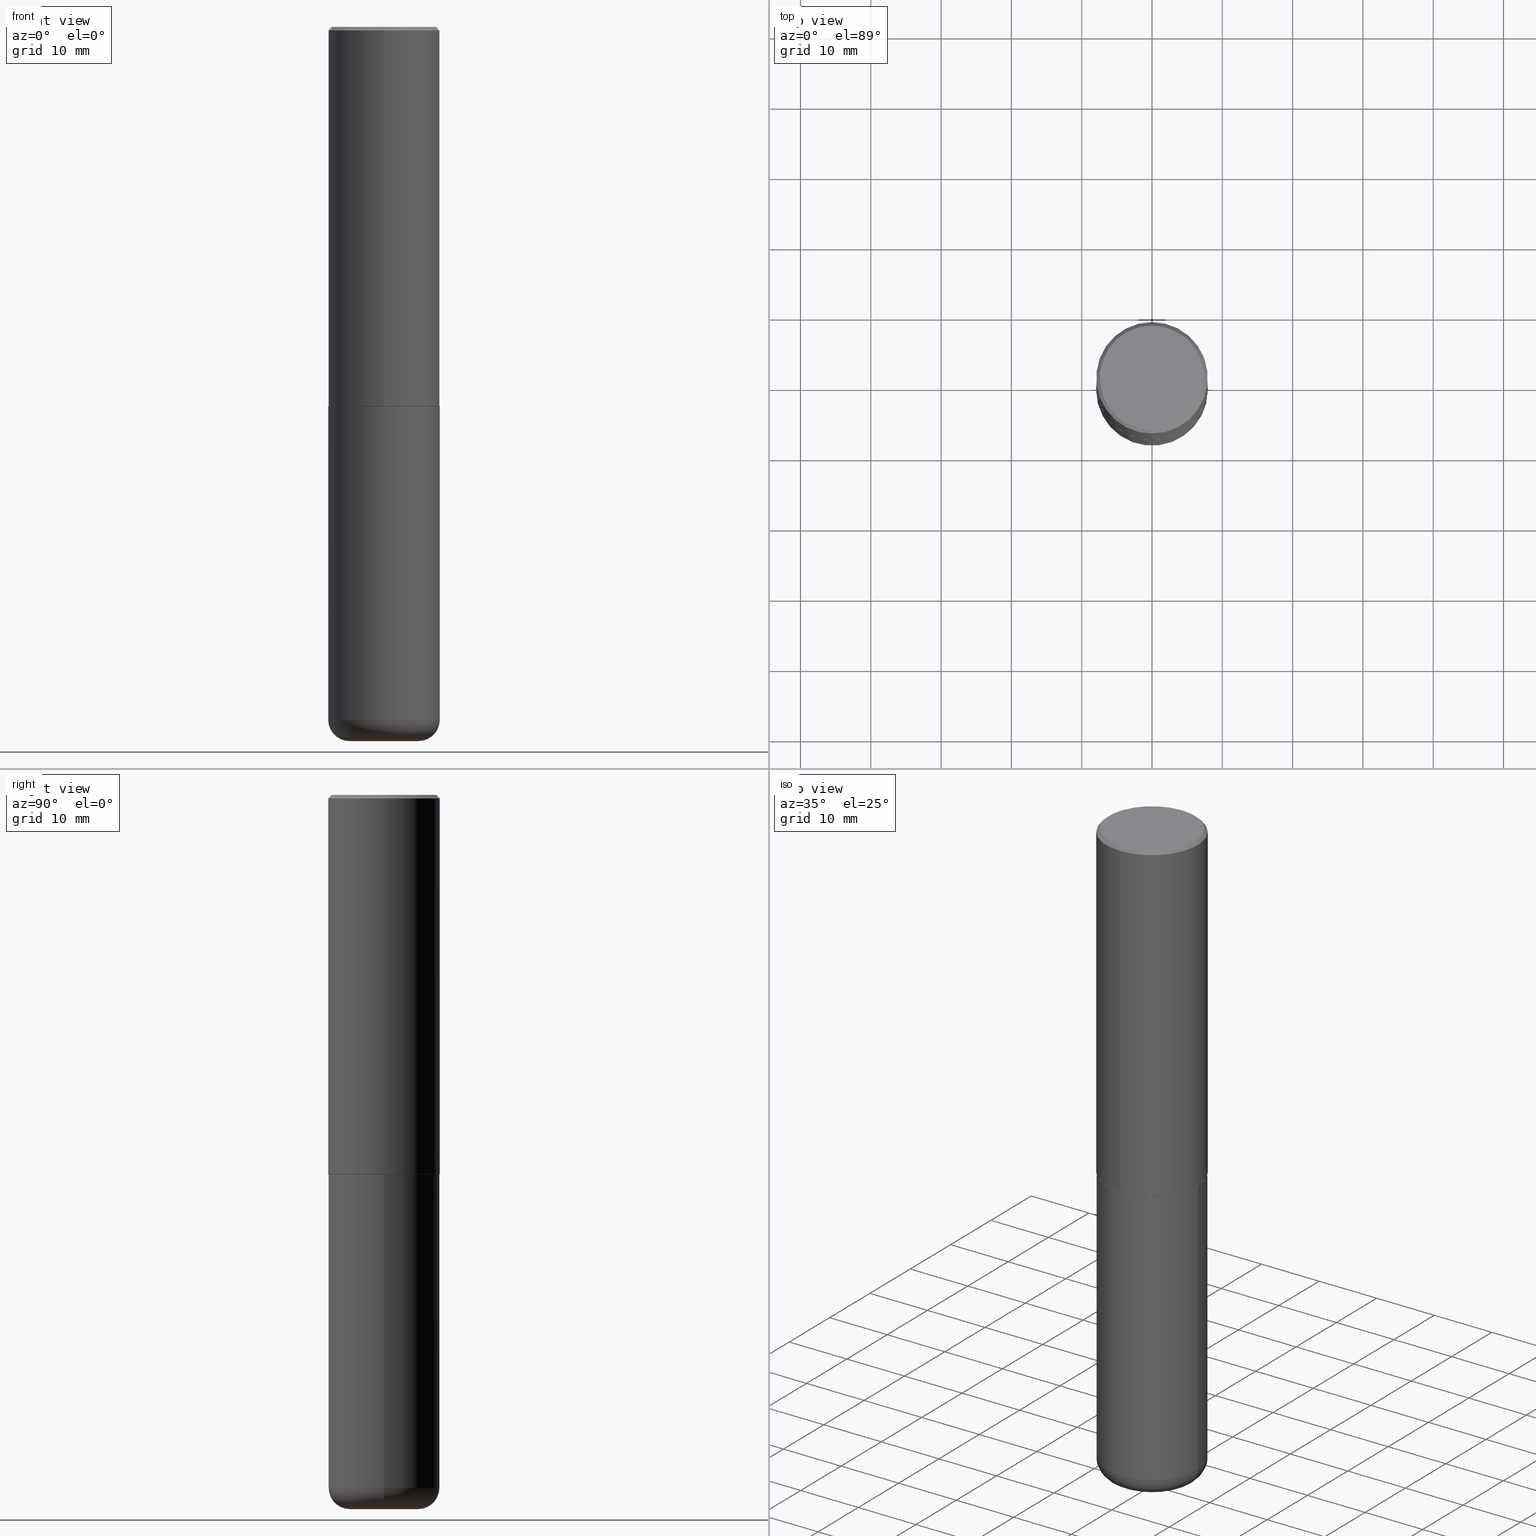
[diagram: canonical four-view strip — front | top / right | iso, engineering-drawing reading convention]
A machine part, canonical four-view strip (front | top / right | iso — engineering-drawing reading convention). The complete STEP part file that produces these views, byte-faithful:
ISO-10303-21;
HEADER;
FILE_DESCRIPTION (( 'STEP AP203' ),
    '1' );
FILE_NAME ('37610.STEP',
    '2024-03-02T05:50:34',
    ( '' ),
    ( '' ),
    'SwSTEP 2.0',
    'SolidWorks 2023',
    '' );
FILE_SCHEMA (( 'CONFIG_CONTROL_DESIGN' ));
ENDSEC;

DATA;
#1 = FACE_OUTER_BOUND ( 'NONE', #146, .T. ) ;
#2 = AXIS2_PLACEMENT_3D ( 'NONE', #417, #331, #390 ) ;
#3 = PRODUCT_DEFINITION_FORMATION_WITH_SPECIFIED_SOURCE ( 'ANY', '', #246, .NOT_KNOWN. ) ;
#4 = CARTESIAN_POINT ( 'NONE',  ( -0.3125000000000000555, -1.132650154546109262E-14, -3.880000000000000338 ) ) ;
#5 = EDGE_CURVE ( 'NONE', #255, #54, #130, .T. ) ;
#6 = DIRECTION ( 'NONE',  ( 6.982962677686265133E-15, 1.000000000000000000, -3.496765431890256920E-15 ) ) ;
#7 = FACE_OUTER_BOUND ( 'NONE', #216, .T. ) ;
#8 = AXIS2_PLACEMENT_3D ( 'NONE', #322, #20, #12 ) ;
#9 = DIRECTION ( 'NONE',  ( 1.000000000000000000, -6.982962677686265922E-15, 4.883557194083112340E-29 ) ) ;
#10 = ORIENTED_EDGE ( 'NONE', *, *, #17, .T. ) ;
#11 = DIRECTION ( 'NONE',  ( 1.000000000000000000, -6.982962677686265133E-15, 0.000000000000000000 ) ) ;
#12 = DIRECTION ( 'NONE',  ( 1.000000000000000000, -6.982962677686269077E-15, 0.000000000000000000 ) ) ;
#13 = ORIENTED_EDGE ( 'NONE', *, *, #106, .F. ) ;
#14 = VECTOR ( 'NONE', #68, 39.37007874015748143 ) ;
#15 = CARTESIAN_POINT ( 'NONE',  ( 0.000000000000000000, 0.000000000000000000, 0.000000000000000000 ) ) ;
#16 = ORIENTED_EDGE ( 'NONE', *, *, #225, .F. ) ;
#17 = EDGE_CURVE ( 'NONE', #85, #258, #323, .T. ) ;
#18 = MECHANICAL_CONTEXT ( 'NONE', #348, 'mechanical' ) ;
#19 = EDGE_LOOP ( 'NONE', ( #321, #25 ) ) ;
#20 = DIRECTION ( 'NONE',  ( -2.445468806185136597E-29, 3.491481338843145583E-15, 1.000000000000000000 ) ) ;
#21 = ORIENTED_EDGE ( 'NONE', *, *, #183, .F. ) ;
#22 = CLOSED_SHELL ( 'NONE', ( #284, #267, #150, #41, #124, #329 ) ) ;
#23 = DIRECTION ( 'NONE',  ( -2.444852431726452894E-29, 3.492364022149836358E-15, 1.000000000000000000 ) ) ;
#24 = AXIS2_PLACEMENT_3D ( 'NONE', #136, #140, #279 ) ;
#25 = ORIENTED_EDGE ( 'NONE', *, *, #69, .T. ) ;
#26 = EDGE_CURVE ( 'NONE', #258, #56, #97, .T. ) ;
#27 = LINE ( 'NONE', #385, #78 ) ;
#28 = DATE_TIME_ROLE ( 'creation_date' ) ;
#29 = DIRECTION ( 'NONE',  ( -2.444852431726452333E-29, 3.492364022149836358E-15, 1.000000000000000000 ) ) ;
#30 = LINE ( 'NONE', #157, #39 ) ;
#31 = AXIS2_PLACEMENT_3D ( 'NONE', #402, #177, #409 ) ;
#32 = DESIGN_CONTEXT ( 'detailed design', #209, 'design' ) ;
#33 = APPROVAL ( #330, 'UNSPECIFIED' ) ;
#34 = CARTESIAN_POINT ( 'NONE',  ( 0.000000000000000000, 0.000000000000000000, 0.000000000000000000 ) ) ;
#35 = CC_DESIGN_APPROVAL ( #45, ( #176 ) ) ;
#36 = CC_DESIGN_SECURITY_CLASSIFICATION ( #176, ( #3 ) ) ;
#37 = DIRECTION ( 'NONE',  ( -2.444852431726452894E-29, 3.492364022149836358E-15, 1.000000000000000000 ) ) ;
#38 = DIRECTION ( 'NONE',  ( 2.444852431726452894E-29, -3.492364022149836358E-15, -1.000000000000000000 ) ) ;
#39 = VECTOR ( 'NONE', #416, 39.37007874015748143 ) ;
#40 = CONICAL_SURFACE ( 'NONE', #282, 0.3114999999999999991, 0.7853981633975507526 ) ;
#41 = ADVANCED_FACE ( 'NONE', ( #356 ), #123, .T. ) ;
#42 = CARTESIAN_POINT ( 'NONE',  ( 4.889704863452922148E-31, -6.984728044299695791E-17, -0.02000000000000006981 ) ) ;
#43 = LINE ( 'NONE', #367, #269 ) ;
#44 = VECTOR ( 'NONE', #398, 39.37007874015748143 ) ;
#45 = APPROVAL ( #325, 'UNSPECIFIED' ) ;
#46 = FACE_OUTER_BOUND ( 'NONE', #230, .T. ) ;
#47 = VERTEX_POINT ( 'NONE', #360 ) ;
#48 = CARTESIAN_POINT ( 'NONE',  ( 5.195311417418712329E-29, -7.421273547068401324E-15, -2.124999999999999556 ) ) ;
#49 = ORIENTED_EDGE ( 'NONE', *, *, #225, .T. ) ;
#50 = ADVANCED_FACE ( 'NONE', ( #201 ), #260, .T. ) ;
#51 = AXIS2_PLACEMENT_3D ( 'NONE', #363, #276, #71 ) ;
#52 = DIRECTION ( 'NONE',  ( -6.982962677686265922E-15, -1.000000000000000000, 3.507991003100177457E-15 ) ) ;
#53 = ORIENTED_EDGE ( 'NONE', *, *, #5, .F. ) ;
#54 = VERTEX_POINT ( 'NONE', #65 ) ;
#55 = APPROVAL_ROLE ( '' ) ;
#56 = VERTEX_POINT ( 'NONE', #413 ) ;
#57 = AXIS2_PLACEMENT_3D ( 'NONE', #300, #166, #236 ) ;
#58 = AXIS2_PLACEMENT_3D ( 'NONE', #42, #169, #210 ) ;
#59 = PLANE ( 'NONE',  #384 ) ;
#60 = PERSON_AND_ORGANIZATION_ROLE ( 'classification_officer' ) ;
#61 = DIRECTION ( 'NONE',  ( -2.444852431726452894E-29, 3.492364022149836358E-15, 1.000000000000000000 ) ) ;
#62 = DIRECTION ( 'NONE',  ( -2.444852431726452894E-29, 3.492364022149836358E-15, 1.000000000000000000 ) ) ;
#63 = APPROVAL ( #222, 'UNSPECIFIED' ) ;
#64 = PERSON_AND_ORGANIZATION ( #293, #369 ) ;
#65 = CARTESIAN_POINT ( 'NONE',  ( -2.075300644325887493E-15, -0.2924999999999999822, 1.030311686326234990E-15 ) ) ;
#66 = CIRCLE ( 'NONE', #181, 0.3114999999999999991 ) ;
#67 = DATE_TIME_ROLE ( 'classification_date' ) ;
#68 = DIRECTION ( 'NONE',  ( -2.445468806185136877E-29, 3.491481338843145188E-15, 1.000000000000000000 ) ) ;
#69 = EDGE_CURVE ( 'NONE', #54, #255, #153, .T. ) ;
#70 = DIRECTION ( 'NONE',  ( 1.000000000000000000, -6.982962677686276177E-15, 0.000000000000000000 ) ) ;
#71 = DIRECTION ( 'NONE',  ( 6.982962677686265922E-15, 1.000000000000000000, -3.492364022149836358E-15 ) ) ;
#72 = TOROIDAL_SURFACE ( 'NONE', #316, 0.1925000000000000044, 0.1200000000000001898 ) ;
#73 = CARTESIAN_POINT ( 'NONE',  ( 0.1925000000000000044, -1.531014567082719057E-14, -4.000000000000000888 ) ) ;
#74 = VERTEX_POINT ( 'NONE', #266 ) ;
#75 = DIRECTION ( 'NONE',  ( -4.937700262165053702E-15, -0.7071067811866175168, 0.7071067811864775177 ) ) ;
#76 = ADVANCED_FACE ( 'NONE', ( #196 ), #59, .F. ) ;
#77 = DIRECTION ( 'NONE',  ( -2.444852431726452894E-29, 3.492364022149836358E-15, 1.000000000000000000 ) ) ;
#78 = VECTOR ( 'NONE', #228, 39.37007874015748143 ) ;
#79 = AXIS2_PLACEMENT_3D ( 'NONE', #311, #362, #133 ) ;
#80 = FACE_OUTER_BOUND ( 'NONE', #180, .T. ) ;
#81 = ORIENTED_EDGE ( 'NONE', *, *, #237, .T. ) ;
#82 = ORIENTED_EDGE ( 'NONE', *, *, #141, .T. ) ;
#83 =( GEOMETRIC_REPRESENTATION_CONTEXT ( 3 ) GLOBAL_UNCERTAINTY_ASSIGNED_CONTEXT ( ( #307 ) ) GLOBAL_UNIT_ASSIGNED_CONTEXT ( ( #149, #220, #214 ) ) REPRESENTATION_CONTEXT ( 'NONE', 'WORKASPACE' ) );
#84 = FACE_OUTER_BOUND ( 'NONE', #355, .T. ) ;
#85 = VERTEX_POINT ( 'NONE', #296 ) ;
#86 = PERSON_AND_ORGANIZATION ( #293, #369 ) ;
#87 = ORIENTED_EDGE ( 'NONE', *, *, #299, .T. ) ;
#88 = CC_DESIGN_PERSON_AND_ORGANIZATION_ASSIGNMENT ( #200, #164, ( #218 ) ) ;
#89 = ORIENTED_EDGE ( 'NONE', *, *, #219, .T. ) ;
#90 = DATE_AND_TIME ( #154, #376 ) ;
#91 = CIRCLE ( 'NONE', #167, 0.1200000000000001482 ) ;
#92 = DIRECTION ( 'NONE',  ( -2.444852431726452894E-29, 3.492364022149836358E-15, 1.000000000000000000 ) ) ;
#93 = CARTESIAN_POINT ( 'NONE',  ( -2.150299018297948745E-46, 3.071607443834507134E-32, 8.795209847407834549E-18 ) ) ;
#94 = EDGE_CURVE ( 'NONE', #47, #405, #27, .T. ) ;
#95 = CALENDAR_DATE ( 2024, 2, 3 ) ;
#96 = DIRECTION ( 'NONE',  ( 7.105427357601001859E-15, 1.000000000000000000, -3.491481338843145583E-15 ) ) ;
#97 = CIRCLE ( 'NONE', #109, 0.3125000000000000000 ) ;
#98 = CIRCLE ( 'NONE', #253, 0.1925000000000000044 ) ;
#99 = EDGE_CURVE ( 'NONE', #353, #286, #203, .T. ) ;
#100 = DIRECTION ( 'NONE',  ( 2.438088387897960049E-29, -3.491481338843145188E-15, -1.000000000000000000 ) ) ;
#101 = DIMENSIONAL_EXPONENTS ( 1.000000000000000000, 0.000000000000000000, 0.000000000000000000, 0.000000000000000000, 0.000000000000000000, 0.000000000000000000, 0.000000000000000000 ) ;
#102 = DIRECTION ( 'NONE',  ( -2.445468806185136877E-29, 3.491481338843145188E-15, 1.000000000000000000 ) ) ;
#103 = CARTESIAN_POINT ( 'NONE',  ( 0.000000000000000000, 0.000000000000000000, 0.000000000000000000 ) ) ;
#104 = AXIS2_PLACEMENT_3D ( 'NONE', #205, #399, #11 ) ;
#105 = CARTESIAN_POINT ( 'NONE',  ( 4.889704863452922148E-31, -6.984728044299695791E-17, -0.02000000000000006981 ) ) ;
#106 = EDGE_CURVE ( 'NONE', #178, #247, #368, .T. ) ;
#107 = DIRECTION ( 'NONE',  ( 1.000000000000000000, -6.982962677686269077E-15, 0.000000000000000000 ) ) ;
#108 = CARTESIAN_POINT ( 'NONE',  ( 4.889704863452922148E-31, -6.984728044299695791E-17, -0.02000000000000006981 ) ) ;
#109 = AXIS2_PLACEMENT_3D ( 'NONE', #160, #129, #232 ) ;
#110 = EDGE_CURVE ( 'NONE', #47, #388, #189, .T. ) ;
#111 =( LENGTH_UNIT ( ) NAMED_UNIT ( * ) SI_UNIT ( $, .METRE. ) );
#112 = ORIENTED_EDGE ( 'NONE', *, *, #233, .T. ) ;
#113 = DIRECTION ( 'NONE',  ( -6.982962677686265922E-15, -1.000000000000000000, 3.507991003100177457E-15 ) ) ;
#114 = ORIENTED_EDGE ( 'NONE', *, *, #110, .T. ) ;
#115 = CARTESIAN_POINT ( 'NONE',  ( 2.213340621892763743E-15, 0.3114999999999925606, -2.125000000000000888 ) ) ;
#116 = ORIENTED_EDGE ( 'NONE', *, *, #135, .T. ) ;
#117 = CLOSED_SHELL ( 'NONE', ( #411, #242, #357, #206, #50, #365, #76, #304 ) ) ;
#118 = CIRCLE ( 'NONE', #31, 0.3125000000000002776 ) ;
#119 = PERSON_AND_ORGANIZATION_ROLE ( 'design_owner' ) ;
#120 = ORIENTED_EDGE ( 'NONE', *, *, #395, .F. ) ;
#121 = CC_DESIGN_DATE_AND_TIME_ASSIGNMENT ( #354, #67, ( #176 ) ) ;
#122 = ORIENTED_EDGE ( 'NONE', *, *, #299, .F. ) ;
#123 = CYLINDRICAL_SURFACE ( 'NONE', #337, 0.3125000000000000000 ) ;
#124 = ADVANCED_FACE ( 'NONE', ( #335 ), #227, .T. ) ;
#125 = CARTESIAN_POINT ( 'NONE',  ( 5.196621213143414147E-29, -7.419397845041682046E-15, -2.124999999999999556 ) ) ;
#126 = CC_DESIGN_APPROVAL ( #33, ( #3 ) ) ;
#127 = SECURITY_CLASSIFICATION_LEVEL ( 'unclassified' ) ;
#128 = DIRECTION ( 'NONE',  ( -6.982962677686265133E-15, -1.000000000000000000, 3.492364022149836358E-15 ) ) ;
#129 = DIRECTION ( 'NONE',  ( -2.445468806185136597E-29, 3.491481338843145583E-15, 1.000000000000000000 ) ) ;
#130 = CIRCLE ( 'NONE', #244, 0.2924999999999999822 ) ;
#131 = AXIS2_PLACEMENT_3D ( 'NONE', #15, #145, #318 ) ;
#132 = PLANE ( 'NONE',  #281 ) ;
#133 = DIRECTION ( 'NONE',  ( -6.982962677686265133E-15, -1.000000000000000000, 3.492364022149836358E-15 ) ) ;
#134 = CARTESIAN_POINT ( 'NONE',  ( 2.216893335571564642E-15, 0.3114999999999925606, -2.125000000000000888 ) ) ;
#135 = EDGE_CURVE ( 'NONE', #255, #74, #30, .T. ) ;
#136 = CARTESIAN_POINT ( 'NONE',  ( 1.854023762560946993E-29, -2.531905987449679755E-14, -4.000000000000000000 ) ) ;
#137 = APPROVAL_PERSON_ORGANIZATION ( #86, #63, #55 ) ;
#138 = CARTESIAN_POINT ( 'NONE',  ( 0.3125000000000000000, -2.182175836776958347E-15, 1.523805242436230075E-29 ) ) ;
#139 = APPROVAL_PERSON_ORGANIZATION ( #262, #45, #257 ) ;
#140 = DIRECTION ( 'NONE',  ( 2.438088387897960049E-29, -3.491481338843145188E-15, -1.000000000000000000 ) ) ;
#141 = EDGE_CURVE ( 'NONE', #258, #353, #235, .T. ) ;
#142 = CARTESIAN_POINT ( 'NONE',  ( 2.220446049250340297E-15, 0.3124999999999928391, -2.124000000000000554 ) ) ;
#143 = EDGE_LOOP ( 'NONE', ( #351, #403, #277, #21 ) ) ;
#144 = CONICAL_SURFACE ( 'NONE', #198, 0.3125000000000000000, 0.7853981633974471688 ) ;
#145 = DIRECTION ( 'NONE',  ( 0.000000000000000000, 0.000000000000000000, 1.000000000000000000 ) ) ;
#146 = EDGE_LOOP ( 'NONE', ( #182, #317 ) ) ;
#147 = ORIENTED_EDGE ( 'NONE', *, *, #370, .F. ) ;
#148 = PRODUCT_DEFINITION_SHAPE ( 'NONE', 'NONE',  #218 ) ;
#149 =( CONVERSION_BASED_UNIT ( 'INCH', #243 ) LENGTH_UNIT ( ) NAMED_UNIT ( #101 ) );
#150 = ADVANCED_FACE ( 'NONE', ( #1 ), #132, .F. ) ;
#151 = EDGE_LOOP ( 'NONE', ( #208, #283 ) ) ;
#152 = AXIS2_PLACEMENT_3D ( 'NONE', #333, #62, #361 ) ;
#153 = CIRCLE ( 'NONE', #152, 0.2924999999999999822 ) ;
#154 = CALENDAR_DATE ( 2024, 2, 3 ) ;
#155 = ORIENTED_EDGE ( 'NONE', *, *, #17, .F. ) ;
#156 = APPROVAL_ROLE ( '' ) ;
#157 = CARTESIAN_POINT ( 'NONE',  ( 2.182175836776958741E-15, 0.3124999999999999445, -0.02000000000000116268 ) ) ;
#158 = EDGE_CURVE ( 'NONE', #324, #85, #261, .T. ) ;
#159 = APPROVAL_DATE_TIME ( #259, #45 ) ;
#160 = CARTESIAN_POINT ( 'NONE',  ( 9.488418967998330085E-29, -1.354694759471140570E-14, -3.880000000000000338 ) ) ;
#161 = PERSON_AND_ORGANIZATION ( #293, #369 ) ;
#162 = AXIS2_PLACEMENT_3D ( 'NONE', #105, #38, #6 ) ;
#163 = DIRECTION ( 'NONE',  ( -1.000000000000000000, 7.105427357600998703E-15, 0.000000000000000000 ) ) ;
#164 = PERSON_AND_ORGANIZATION_ROLE ( 'creator' ) ;
#165 = DIRECTION ( 'NONE',  ( -6.982962677686265922E-15, -1.000000000000000000, 3.492364022149836358E-15 ) ) ;
#166 = DIRECTION ( 'NONE',  ( -2.445468806185136597E-29, 3.491481338843145583E-15, 1.000000000000000000 ) ) ;
#167 = AXIS2_PLACEMENT_3D ( 'NONE', #240, #211, #70 ) ;
#168 = CYLINDRICAL_SURFACE ( 'NONE', #79, 0.3125000000000001665 ) ;
#169 = DIRECTION ( 'NONE',  ( -2.444852431726452894E-29, 3.492364022149836358E-15, 1.000000000000000000 ) ) ;
#170 = PLANE ( 'NONE',  #24 ) ;
#171 = DIRECTION ( 'NONE',  ( -6.982962677686265133E-15, -1.000000000000000000, 3.496765431890256920E-15 ) ) ;
#172 = AXIS2_PLACEMENT_3D ( 'NONE', #192, #96, #163 ) ;
#173 = CONICAL_SURFACE ( 'NONE', #386, 0.3114999999999999991, 0.7853981633975507526 ) ;
#174 = FACE_OUTER_BOUND ( 'NONE', #185, .T. ) ;
#175 = ORIENTED_EDGE ( 'NONE', *, *, #237, .F. ) ;
#176 = SECURITY_CLASSIFICATION ( '', '', #127 ) ;
#177 = DIRECTION ( 'NONE',  ( -2.444852431726452894E-29, 3.492364022149836358E-15, 1.000000000000000000 ) ) ;
#178 = VERTEX_POINT ( 'NONE', #134 ) ;
#179 = DIRECTION ( 'NONE',  ( -2.444852431726452894E-29, 3.492364022149836358E-15, 1.000000000000000000 ) ) ;
#180 = EDGE_LOOP ( 'NONE', ( #188, #389, #268, #374 ) ) ;
#181 = AXIS2_PLACEMENT_3D ( 'NONE', #349, #248, #52 ) ;
#182 = ORIENTED_EDGE ( 'NONE', *, *, #314, .T. ) ;
#183 = EDGE_CURVE ( 'NONE', #74, #405, #245, .T. ) ;
#184 = ADVANCED_BREP_SHAPE_REPRESENTATION ( '37610', ( #332, #186, #131 ), #83 ) ;
#185 = EDGE_LOOP ( 'NONE', ( #114, #89, #175, #292 ) ) ;
#186 = MANIFOLD_SOLID_BREP ( 'Body-Move/Copy2[2]', #117 ) ;
#187 = COORDINATED_UNIVERSAL_TIME_OFFSET ( 5, 0, .BEHIND. ) ;
#188 = ORIENTED_EDGE ( 'NONE', *, *, #346, .F. ) ;
#189 = CIRCLE ( 'NONE', #2, 0.3125000000000002776 ) ;
#190 = LOCAL_TIME ( 0, 50, 34.00000000000000000, #415 ) ;
#191 = DATE_AND_TIME ( #95, #190 ) ;
#192 = CARTESIAN_POINT ( 'NONE',  ( -0.1925000000000000044, -1.217915282837321360E-14, -3.880000000000000338 ) ) ;
#193 = EDGE_CURVE ( 'NONE', #247, #47, #239, .T. ) ;
#194 = APPROVAL_DATE_TIME ( #387, #33 ) ;
#195 = DIRECTION ( 'NONE',  ( -6.982962677686265922E-15, -1.000000000000000000, 3.507991003100177457E-15 ) ) ;
#196 = FACE_OUTER_BOUND ( 'NONE', #215, .T. ) ;
#197 = SHAPE_DEFINITION_REPRESENTATION ( #148, #184 ) ;
#198 = AXIS2_PLACEMENT_3D ( 'NONE', #254, #375, #404 ) ;
#199 = ORIENTED_EDGE ( 'NONE', *, *, #141, .F. ) ;
#200 = PERSON_AND_ORGANIZATION ( #293, #369 ) ;
#201 = FACE_OUTER_BOUND ( 'NONE', #143, .T. ) ;
#202 = DIRECTION ( 'NONE',  ( -2.445468806185136597E-29, 3.491481338843145583E-15, 1.000000000000000000 ) ) ;
#203 = CIRCLE ( 'NONE', #391, 0.3125000000000000000 ) ;
#204 = CIRCLE ( 'NONE', #8, 0.3125000000000000000 ) ;
#205 = CARTESIAN_POINT ( 'NONE',  ( 5.196621213143414147E-29, -7.419397845041682046E-15, -2.124999999999999556 ) ) ;
#206 = ADVANCED_FACE ( 'NONE', ( #7 ), #397, .T. ) ;
#207 = DIRECTION ( 'NONE',  ( -2.445468806185136597E-29, 3.491481338843145583E-15, 1.000000000000000000 ) ) ;
#208 = ORIENTED_EDGE ( 'NONE', *, *, #158, .F. ) ;
#209 = APPLICATION_CONTEXT ( 'configuration controlled 3d designs of mechanical parts and assemblies' ) ;
#210 = DIRECTION ( 'NONE',  ( -6.982962677686265133E-15, -1.000000000000000000, 3.496765431890256920E-15 ) ) ;
#211 = DIRECTION ( 'NONE',  ( -6.982962677686266711E-15, -1.000000000000000000, 3.491481338843145583E-15 ) ) ;
#212 = AXIS2_PLACEMENT_3D ( 'NONE', #270, #61, #195 ) ;
#213 = VECTOR ( 'NONE', #75, 39.37007874015748143 ) ;
#214 =( NAMED_UNIT ( * ) SI_UNIT ( $, .STERADIAN. ) SOLID_ANGLE_UNIT ( ) );
#215 = EDGE_LOOP ( 'NONE', ( #120, #13 ) ) ;
#216 = EDGE_LOOP ( 'NONE', ( #16, #53, #116, #223 ) ) ;
#217 = AXIS2_PLACEMENT_3D ( 'NONE', #306, #207, #107 ) ;
#218 = PRODUCT_DEFINITION ( 'UNKNOWN', '', #3, #32 ) ;
#219 = EDGE_CURVE ( 'NONE', #388, #74, #275, .T. ) ;
#220 =( NAMED_UNIT ( * ) PLANE_ANGLE_UNIT ( ) SI_UNIT ( $, .RADIAN. ) );
#221 = ORIENTED_EDGE ( 'NONE', *, *, #233, .F. ) ;
#222 = APPROVAL_STATUS ( 'not_yet_approved' ) ;
#223 = ORIENTED_EDGE ( 'NONE', *, *, #183, .T. ) ;
#224 = APPROVAL_DATE_TIME ( #90, #63 ) ;
#225 = EDGE_CURVE ( 'NONE', #54, #405, #43, .T. ) ;
#226 = ORIENTED_EDGE ( 'NONE', *, *, #193, .F. ) ;
#227 = TOROIDAL_SURFACE ( 'NONE', #57, 0.1925000000000000044, 0.1200000000000001898 ) ;
#228 = DIRECTION ( 'NONE',  ( -2.444852431726452614E-29, 3.492364022149836358E-15, 1.000000000000000000 ) ) ;
#229 = CALENDAR_DATE ( 2024, 2, 3 ) ;
#230 = EDGE_LOOP ( 'NONE', ( #344, #82, #288, #122 ) ) ;
#231 = COORDINATED_UNIVERSAL_TIME_OFFSET ( 5, 0, .BEHIND. ) ;
#232 = DIRECTION ( 'NONE',  ( 1.000000000000000000, -6.982962677686269077E-15, 0.000000000000000000 ) ) ;
#233 = EDGE_CURVE ( 'NONE', #324, #56, #91, .T. ) ;
#234 = CC_DESIGN_APPROVAL ( #63, ( #218 ) ) ;
#235 = LINE ( 'NONE', #328, #14 ) ;
#236 = DIRECTION ( 'NONE',  ( 1.000000000000000000, -6.982962677686265922E-15, 4.883557194083112340E-29 ) ) ;
#237 = EDGE_CURVE ( 'NONE', #405, #74, #401, .T. ) ;
#238 = FACE_OUTER_BOUND ( 'NONE', #19, .T. ) ;
#239 = LINE ( 'NONE', #339, #213 ) ;
#240 = CARTESIAN_POINT ( 'NONE',  ( 0.1925000000000000044, -1.489116791016601393E-14, -3.880000000000000338 ) ) ;
#241 = CARTESIAN_POINT ( 'NONE',  ( 2.220446049250313475E-15, 0.3125000000000001665, -1.091363756921824478E-15 ) ) ;
#242 = ADVANCED_FACE ( 'NONE', ( #174 ), #168, .T. ) ;
#243 = LENGTH_MEASURE_WITH_UNIT ( LENGTH_MEASURE( 0.02539999999999999897 ), #111 );
#244 = AXIS2_PLACEMENT_3D ( 'NONE', #93, #92, #414 ) ;
#245 = CIRCLE ( 'NONE', #309, 0.3125000000000000000 ) ;
#246 = PRODUCT ( '37610', '37610', '', ( #18 ) ) ;
#247 = VERTEX_POINT ( 'NONE', #366 ) ;
#248 = DIRECTION ( 'NONE',  ( -2.444852431726452894E-29, 3.492364022149836358E-15, 1.000000000000000000 ) ) ;
#249 = CC_DESIGN_PERSON_AND_ORGANIZATION_ASSIGNMENT ( #407, #119, ( #246 ) ) ;
#250 = ORIENTED_EDGE ( 'NONE', *, *, #158, .T. ) ;
#251 = DIRECTION ( 'NONE',  ( 5.024295867788576727E-15, 0.7071067811866224018, 0.7071067811864726327 ) ) ;
#252 = EDGE_LOOP ( 'NONE', ( #408, #49, #81, #347 ) ) ;
#253 = AXIS2_PLACEMENT_3D ( 'NONE', #315, #291, #287 ) ;
#254 = CARTESIAN_POINT ( 'NONE',  ( 4.889704863452922148E-31, -6.984728044299695791E-17, -0.02000000000000006981 ) ) ;
#255 = VERTEX_POINT ( 'NONE', #343 ) ;
#256 = LOCAL_TIME ( 0, 50, 34.00000000000000000, #231 ) ;
#257 = APPROVAL_ROLE ( '' ) ;
#258 = VERTEX_POINT ( 'NONE', #4 ) ;
#259 = DATE_AND_TIME ( #229, #272 ) ;
#260 = CYLINDRICAL_SURFACE ( 'NONE', #342, 0.3125000000000001665 ) ;
#261 = CIRCLE ( 'NONE', #217, 0.1925000000000000044 ) ;
#262 = PERSON_AND_ORGANIZATION ( #293, #369 ) ;
#263 = APPROVAL_PERSON_ORGANIZATION ( #64, #33, #156 ) ;
#264 = DIRECTION ( 'NONE',  ( -2.445468806185136597E-29, 3.491481338843145583E-15, 1.000000000000000000 ) ) ;
#265 = COORDINATED_UNIVERSAL_TIME_OFFSET ( 5, 0, .BEHIND. ) ;
#266 = CARTESIAN_POINT ( 'NONE',  ( 2.182175836776958741E-15, 0.3124999999999999445, -0.02000000000000116268 ) ) ;
#267 = ADVANCED_FACE ( 'NONE', ( #341 ), #72, .T. ) ;
#268 = ORIENTED_EDGE ( 'NONE', *, *, #193, .T. ) ;
#269 = VECTOR ( 'NONE', #396, 39.37007874015748143 ) ;
#270 = CARTESIAN_POINT ( 'NONE',  ( 5.195311417418712329E-29, -7.421273547068401324E-15, -2.124999999999999556 ) ) ;
#271 = CARTESIAN_POINT ( 'NONE',  ( 0.3125000000000000000, -9.601573681818640393E-15, -2.124999999999999556 ) ) ;
#272 = LOCAL_TIME ( 0, 50, 34.00000000000000000, #265 ) ;
#273 = DIRECTION ( 'NONE',  ( 1.000000000000000000, -6.982962677686266711E-15, 4.876176775795936353E-29 ) ) ;
#274 = AXIS2_PLACEMENT_3D ( 'NONE', #103, #364, #273 ) ;
#275 = LINE ( 'NONE', #241, #44 ) ;
#276 = DIRECTION ( 'NONE',  ( 2.444852431726452333E-29, -3.492364022149836358E-15, -1.000000000000000000 ) ) ;
#277 = ORIENTED_EDGE ( 'NONE', *, *, #94, .T. ) ;
#278 = CC_DESIGN_PERSON_AND_ORGANIZATION_ASSIGNMENT ( #301, #60, ( #176 ) ) ;
#279 = DIRECTION ( 'NONE',  ( -1.000000000000000000, 6.982962677686265922E-15, -4.876176775795935793E-29 ) ) ;
#280 = DIRECTION ( 'NONE',  ( -6.982962677686265922E-15, -1.000000000000000000, 3.507991003100177457E-15 ) ) ;
#281 = AXIS2_PLACEMENT_3D ( 'NONE', #393, #100, #305 ) ;
#282 = AXIS2_PLACEMENT_3D ( 'NONE', #48, #23, #280 ) ;
#283 = ORIENTED_EDGE ( 'NONE', *, *, #383, .F. ) ;
#284 = ADVANCED_FACE ( 'NONE', ( #46 ), #336, .T. ) ;
#285 = CARTESIAN_POINT ( 'NONE',  ( -0.3125000000000000000, -8.262726670626231579E-15, -2.124999999999999556 ) ) ;
#286 = VERTEX_POINT ( 'NONE', #271 ) ;
#287 = DIRECTION ( 'NONE',  ( 1.000000000000000000, -6.982962677686269077E-15, 0.000000000000000000 ) ) ;
#288 = ORIENTED_EDGE ( 'NONE', *, *, #314, .F. ) ;
#289 = ORIENTED_EDGE ( 'NONE', *, *, #395, .T. ) ;
#290 = VECTOR ( 'NONE', #102, 39.37007874015748143 ) ;
#291 = DIRECTION ( 'NONE',  ( -2.445468806185136597E-29, 3.491481338843145583E-15, 1.000000000000000000 ) ) ;
#292 = ORIENTED_EDGE ( 'NONE', *, *, #94, .F. ) ;
#293 = PERSON ( 'UNSPECIFIED', 'UNSPECIFIED', 'UNSPECIFIED', ('UNSPECIFIED'), ('UNSPECIFIED'), ('UNSPECIFIED') ) ;
#294 = PERSON_AND_ORGANIZATION_ROLE ( 'design_supplier' ) ;
#295 = DIRECTION ( 'NONE',  ( 1.000000000000000000, -6.982962677686265133E-15, 0.000000000000000000 ) ) ;
#296 = CARTESIAN_POINT ( 'NONE',  ( -0.1925000000000000044, -1.196231606724774300E-14, -4.000000000000000888 ) ) ;
#297 = CIRCLE ( 'NONE', #104, 0.3125000000000000000 ) ;
#298 = COORDINATED_UNIVERSAL_TIME_OFFSET ( 5, 0, .BEHIND. ) ;
#299 = EDGE_CURVE ( 'NONE', #56, #286, #308, .T. ) ;
#300 = CARTESIAN_POINT ( 'NONE',  ( 9.488418967998330085E-29, -1.354694759471140570E-14, -3.880000000000000338 ) ) ;
#301 = PERSON_AND_ORGANIZATION ( #293, #369 ) ;
#302 = DIRECTION ( 'NONE',  ( -2.445468806185136597E-29, 3.491481338843145583E-15, 1.000000000000000000 ) ) ;
#303 = CARTESIAN_POINT ( 'NONE',  ( 5.195311417418712329E-29, -7.421273547068401324E-15, -2.124999999999999556 ) ) ;
#304 = ADVANCED_FACE ( 'NONE', ( #238 ), #312, .F. ) ;
#305 = DIRECTION ( 'NONE',  ( -1.000000000000000000, 6.982962677686265922E-15, -4.876176775795935793E-29 ) ) ;
#306 = CARTESIAN_POINT ( 'NONE',  ( 9.781875224740547508E-29, -1.396592535537258391E-14, -4.000000000000000888 ) ) ;
#307 = UNCERTAINTY_MEASURE_WITH_UNIT (LENGTH_MEASURE( 1.000000000000000082E-05 ), #149, 'distance_accuracy_value', 'NONE');
#308 = LINE ( 'NONE', #138, #290 ) ;
#309 = AXIS2_PLACEMENT_3D ( 'NONE', #108, #77, #171 ) ;
#310 = CC_DESIGN_DATE_AND_TIME_ASSIGNMENT ( #191, #28, ( #218 ) ) ;
#311 = CARTESIAN_POINT ( 'NONE',  ( 0.000000000000000000, 0.000000000000000000, 0.000000000000000000 ) ) ;
#312 = PLANE ( 'NONE',  #51 ) ;
#313 = EDGE_LOOP ( 'NONE', ( #250, #10, #147, #221 ) ) ;
#314 = EDGE_CURVE ( 'NONE', #286, #353, #297, .T. ) ;
#315 = CARTESIAN_POINT ( 'NONE',  ( 9.781875224740547508E-29, -1.396592535537258391E-14, -4.000000000000000888 ) ) ;
#316 = AXIS2_PLACEMENT_3D ( 'NONE', #394, #202, #9 ) ;
#317 = ORIENTED_EDGE ( 'NONE', *, *, #99, .T. ) ;
#318 = DIRECTION ( 'NONE',  ( 1.000000000000000000, 0.000000000000000000, 0.000000000000000000 ) ) ;
#319 = EDGE_LOOP ( 'NONE', ( #199, #406, #87, #350 ) ) ;
#320 = FACE_OUTER_BOUND ( 'NONE', #252, .T. ) ;
#321 = ORIENTED_EDGE ( 'NONE', *, *, #5, .T. ) ;
#322 = CARTESIAN_POINT ( 'NONE',  ( 9.488418967998330085E-29, -1.354694759471140570E-14, -3.880000000000000338 ) ) ;
#323 = CIRCLE ( 'NONE', #172, 0.1200000000000001482 ) ;
#324 = VERTEX_POINT ( 'NONE', #73 ) ;
#325 = APPROVAL_STATUS ( 'not_yet_approved' ) ;
#326 = CARTESIAN_POINT ( 'NONE',  ( 0.000000000000000000, 0.000000000000000000, 0.000000000000000000 ) ) ;
#327 = PERSON_AND_ORGANIZATION_ROLE ( 'creator' ) ;
#328 = CARTESIAN_POINT ( 'NONE',  ( -0.3125000000000000000, 2.220446049250313081E-15, -1.537167215704658232E-29 ) ) ;
#329 = ADVANCED_FACE ( 'NONE', ( #340 ), #170, .T. ) ;
#330 = APPROVAL_STATUS ( 'not_yet_approved' ) ;
#331 = DIRECTION ( 'NONE',  ( -2.444852431726452894E-29, 3.492364022149836358E-15, 1.000000000000000000 ) ) ;
#332 = MANIFOLD_SOLID_BREP ( 'Body-Move/Copy2[1]', #22 ) ;
#333 = CARTESIAN_POINT ( 'NONE',  ( -2.150299018297948745E-46, 3.071607443834507134E-32, 8.795209847407834549E-18 ) ) ;
#334 = PERSON_AND_ORGANIZATION ( #293, #369 ) ;
#335 = FACE_OUTER_BOUND ( 'NONE', #382, .T. ) ;
#336 = CYLINDRICAL_SURFACE ( 'NONE', #274, 0.3125000000000000000 ) ;
#337 = AXIS2_PLACEMENT_3D ( 'NONE', #34, #302, #358 ) ;
#338 = VECTOR ( 'NONE', #251, 39.37007874015748143 ) ;
#339 = CARTESIAN_POINT ( 'NONE',  ( -2.175192874099219874E-15, -0.3115000000000074376, -2.124999999999998668 ) ) ;
#340 = FACE_OUTER_BOUND ( 'NONE', #151, .T. ) ;
#341 = FACE_OUTER_BOUND ( 'NONE', #313, .T. ) ;
#342 = AXIS2_PLACEMENT_3D ( 'NONE', #326, #37, #128 ) ;
#343 = CARTESIAN_POINT ( 'NONE',  ( 2.112346210000095838E-15, 0.2924999999999999822, -1.012721266631419361E-15 ) ) ;
#344 = ORIENTED_EDGE ( 'NONE', *, *, #370, .T. ) ;
#345 = CARTESIAN_POINT ( 'NONE',  ( 5.195311417418712329E-29, -7.421273547068401324E-15, -2.124999999999999556 ) ) ;
#346 = EDGE_CURVE ( 'NONE', #178, #388, #400, .T. ) ;
#347 = ORIENTED_EDGE ( 'NONE', *, *, #135, .F. ) ;
#348 = APPLICATION_CONTEXT ( 'configuration controlled 3d designs of mechanical parts and assemblies' ) ;
#349 = CARTESIAN_POINT ( 'NONE',  ( 5.195311417418712329E-29, -7.421273547068401324E-15, -2.124999999999999556 ) ) ;
#350 = ORIENTED_EDGE ( 'NONE', *, *, #99, .F. ) ;
#351 = ORIENTED_EDGE ( 'NONE', *, *, #219, .F. ) ;
#352 = CC_DESIGN_PERSON_AND_ORGANIZATION_ASSIGNMENT ( #161, #294, ( #3 ) ) ;
#353 = VERTEX_POINT ( 'NONE', #285 ) ;
#354 = DATE_AND_TIME ( #412, #381 ) ;
#355 = EDGE_LOOP ( 'NONE', ( #289, #410, #377, #226 ) ) ;
#356 = FACE_OUTER_BOUND ( 'NONE', #319, .T. ) ;
#357 = ADVANCED_FACE ( 'NONE', ( #320 ), #144, .T. ) ;
#358 = DIRECTION ( 'NONE',  ( 1.000000000000000000, -6.982962677686266711E-15, 4.876176775795936353E-29 ) ) ;
#359 = CALENDAR_DATE ( 2024, 2, 3 ) ;
#360 = CARTESIAN_POINT ( 'NONE',  ( -2.182175836776908254E-15, -0.3125000000000077161, -2.123999999999998334 ) ) ;
#361 = DIRECTION ( 'NONE',  ( -6.982962677686265133E-15, -1.000000000000000000, 3.492364022149836753E-15 ) ) ;
#362 = DIRECTION ( 'NONE',  ( -2.444852431726452894E-29, 3.492364022149836358E-15, 1.000000000000000000 ) ) ;
#363 = CARTESIAN_POINT ( 'NONE',  ( 2.042516583223232540E-15, 0.2924999999999999822, -1.017118871555123169E-15 ) ) ;
#364 = DIRECTION ( 'NONE',  ( -2.445468806185136597E-29, 3.491481338843145583E-15, 1.000000000000000000 ) ) ;
#365 = ADVANCED_FACE ( 'NONE', ( #80 ), #173, .T. ) ;
#366 = CARTESIAN_POINT ( 'NONE',  ( -2.175192874099219874E-15, -0.3115000000000074376, -2.124999999999998668 ) ) ;
#367 = CARTESIAN_POINT ( 'NONE',  ( -2.143905624303602824E-15, -0.3125000000000000555, -0.01999999999999897693 ) ) ;
#368 = CIRCLE ( 'NONE', #212, 0.3114999999999999991 ) ;
#369 = ORGANIZATION ( 'UNSPECIFIED', 'UNSPECIFIED', '' ) ;
#370 = EDGE_CURVE ( 'NONE', #56, #258, #204, .T. ) ;
#371 = APPLICATION_PROTOCOL_DEFINITION ( 'international standard', 'config_control_design', 1994, #348 ) ;
#372 = ORIENTED_EDGE ( 'NONE', *, *, #26, .F. ) ;
#373 = CARTESIAN_POINT ( 'NONE',  ( -2.143905624303602824E-15, -0.3125000000000000555, -0.01999999999999897693 ) ) ;
#374 = ORIENTED_EDGE ( 'NONE', *, *, #418, .F. ) ;
#375 = DIRECTION ( 'NONE',  ( 2.444852431726452894E-29, -3.492364022149836358E-15, -1.000000000000000000 ) ) ;
#376 = LOCAL_TIME ( 0, 50, 34.00000000000000000, #187 ) ;
#377 = ORIENTED_EDGE ( 'NONE', *, *, #110, .F. ) ;
#378 = CC_DESIGN_PERSON_AND_ORGANIZATION_ASSIGNMENT ( #334, #327, ( #3 ) ) ;
#379 = APPLICATION_PROTOCOL_DEFINITION ( 'international standard', 'config_control_design', 1994, #209 ) ;
#380 = ORIENTED_EDGE ( 'NONE', *, *, #383, .T. ) ;
#381 = LOCAL_TIME ( 0, 50, 34.00000000000000000, #298 ) ;
#382 = EDGE_LOOP ( 'NONE', ( #155, #380, #112, #372 ) ) ;
#383 = EDGE_CURVE ( 'NONE', #85, #324, #98, .T. ) ;
#384 = AXIS2_PLACEMENT_3D ( 'NONE', #303, #29, #165 ) ;
#385 = CARTESIAN_POINT ( 'NONE',  ( -2.182175836776959136E-15, -0.3125000000000001665, 1.091363756921824478E-15 ) ) ;
#386 = AXIS2_PLACEMENT_3D ( 'NONE', #345, #179, #113 ) ;
#387 = DATE_AND_TIME ( #359, #256 ) ;
#388 = VERTEX_POINT ( 'NONE', #142 ) ;
#389 = ORIENTED_EDGE ( 'NONE', *, *, #106, .T. ) ;
#390 = DIRECTION ( 'NONE',  ( -6.982962677686265922E-15, -1.000000000000000000, 3.496765431890253764E-15 ) ) ;
#391 = AXIS2_PLACEMENT_3D ( 'NONE', #125, #264, #295 ) ;
#392 = PRODUCT_RELATED_PRODUCT_CATEGORY ( 'detail', '', ( #246 ) ) ;
#393 = CARTESIAN_POINT ( 'NONE',  ( 5.196621213143414147E-29, -7.419397845041682046E-15, -2.124999999999999556 ) ) ;
#394 = CARTESIAN_POINT ( 'NONE',  ( 9.488418967998330085E-29, -1.354694759471140570E-14, -3.880000000000000338 ) ) ;
#395 = EDGE_CURVE ( 'NONE', #247, #178, #66, .T. ) ;
#396 = DIRECTION ( 'NONE',  ( -4.851104656540957964E-15, -0.7071067811865491270, -0.7071067811865459074 ) ) ;
#397 = CONICAL_SURFACE ( 'NONE', #162, 0.3125000000000000000, 0.7853981633974471688 ) ;
#398 = DIRECTION ( 'NONE',  ( -2.444852431726452614E-29, 3.492364022149836358E-15, 1.000000000000000000 ) ) ;
#399 = DIRECTION ( 'NONE',  ( -2.445468806185136597E-29, 3.491481338843145583E-15, 1.000000000000000000 ) ) ;
#400 = LINE ( 'NONE', #115, #338 ) ;
#401 = CIRCLE ( 'NONE', #58, 0.3125000000000000000 ) ;
#402 = CARTESIAN_POINT ( 'NONE',  ( 5.192866564986985411E-29, -7.417781183046251262E-15, -2.123999999999999666 ) ) ;
#403 = ORIENTED_EDGE ( 'NONE', *, *, #418, .T. ) ;
#404 = DIRECTION ( 'NONE',  ( 6.982962677686265133E-15, 1.000000000000000000, -3.496765431890256920E-15 ) ) ;
#405 = VERTEX_POINT ( 'NONE', #373 ) ;
#406 = ORIENTED_EDGE ( 'NONE', *, *, #26, .T. ) ;
#407 = PERSON_AND_ORGANIZATION ( #293, #369 ) ;
#408 = ORIENTED_EDGE ( 'NONE', *, *, #69, .F. ) ;
#409 = DIRECTION ( 'NONE',  ( -6.982962677686265922E-15, -1.000000000000000000, 3.496765431890253764E-15 ) ) ;
#410 = ORIENTED_EDGE ( 'NONE', *, *, #346, .T. ) ;
#411 = ADVANCED_FACE ( 'NONE', ( #84 ), #40, .T. ) ;
#412 = CALENDAR_DATE ( 2024, 2, 3 ) ;
#413 = CARTESIAN_POINT ( 'NONE',  ( 0.3125000000000000555, -1.572912343148836404E-14, -3.880000000000000338 ) ) ;
#414 = DIRECTION ( 'NONE',  ( -6.982962677686265133E-15, -1.000000000000000000, 3.492364022149836753E-15 ) ) ;
#415 = COORDINATED_UNIVERSAL_TIME_OFFSET ( 5, 0, .BEHIND. ) ;
#416 = DIRECTION ( 'NONE',  ( 4.937700262164541731E-15, 0.7071067811865442421, -0.7071067811865507924 ) ) ;
#417 = CARTESIAN_POINT ( 'NONE',  ( 5.192866564986985411E-29, -7.417781183046251262E-15, -2.123999999999999666 ) ) ;
#418 = EDGE_CURVE ( 'NONE', #388, #47, #118, .T. ) ;
ENDSEC;
END-ISO-10303-21;
